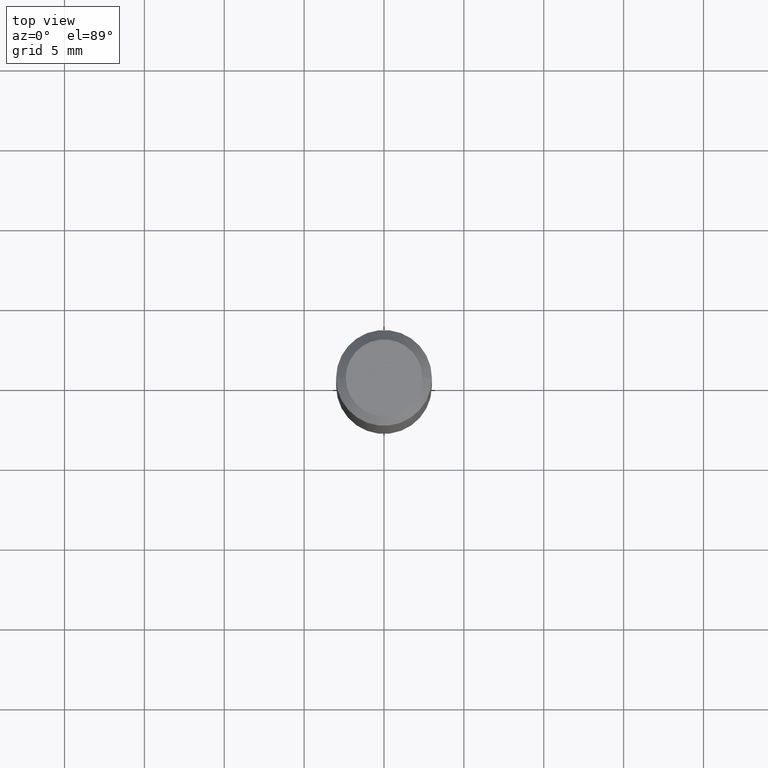
[diagram: clean part render]
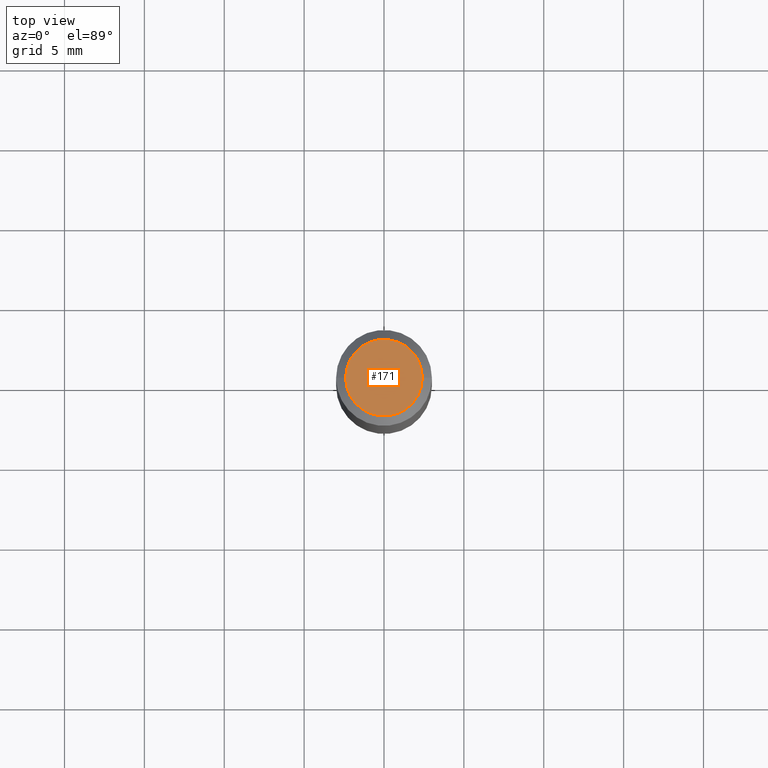
[diagram: same view with one face highlighted and labeled with its STEP entity id]
A machine part, top view. The second image highlights one B-rep face of the part: STEP entity #171.
In plain terms, the highlighted planar face has unit normal (0, -0, -1).
Its self-contained STEP definition (entity closure, byte-faithful):
#1 = VERTEX_POINT ( 'NONE', #514 ) ;
#9 = FACE_OUTER_BOUND ( 'NONE', #294, .T. ) ;
#19 = CIRCLE ( 'NONE', #119, 0.09447999999999998066 ) ;
#119 = AXIS2_PLACEMENT_3D ( 'NONE', #124, #203, #442 ) ;
#120 = DIRECTION ( 'NONE',  ( 1.000000000000000000, -6.982962677686267499E-15, 4.875432709231658792E-29 ) ) ;
#124 = CARTESIAN_POINT ( 'NONE',  ( 7.545787641473140628E-46, -1.077338491108201769E-31, -3.085620075131671975E-17 ) ) ;
#126 = CARTESIAN_POINT ( 'NONE',  ( 3.772893820736570314E-46, -5.386692455541008845E-32, -1.542810037565835988E-17 ) ) ;
#171 = ADVANCED_FACE ( 'NONE', ( #9 ), #486, .F. ) ;
#203 = DIRECTION ( 'NONE',  ( -2.445468806185136597E-29, 3.491481338843145583E-15, 1.000000000000000000 ) ) ;
#206 = DIRECTION ( 'NONE',  ( -1.000000000000000000, 6.982962677686265922E-15, -4.876176775795935793E-29 ) ) ;
#209 = CIRCLE ( 'NONE', #480, 0.09447999999999998066 ) ;
#237 = ORIENTED_EDGE ( 'NONE', *, *, #481, .T. ) ;
#290 = VERTEX_POINT ( 'NONE', #369 ) ;
#294 = EDGE_LOOP ( 'NONE', ( #376, #237 ) ) ;
#321 = AXIS2_PLACEMENT_3D ( 'NONE', #126, #447, #206 ) ;
#356 = DIRECTION ( 'NONE',  ( -2.445468806185136597E-29, 3.491481338843145583E-15, 1.000000000000000000 ) ) ;
#369 = CARTESIAN_POINT ( 'NONE',  ( 0.09447999999999998066, -7.704367267948738690E-16, -3.085620075131172158E-17 ) ) ;
#376 = ORIENTED_EDGE ( 'NONE', *, *, #450, .T. ) ;
#397 = CARTESIAN_POINT ( 'NONE',  ( 7.545787641473140628E-46, -1.077338491108201769E-31, -3.085620075131671975E-17 ) ) ;
#442 = DIRECTION ( 'NONE',  ( 1.000000000000000000, -6.982962677686267499E-15, 4.875432709231658792E-29 ) ) ;
#447 = DIRECTION ( 'NONE',  ( 2.438088387897960049E-29, -3.491481338843145188E-15, -1.000000000000000000 ) ) ;
#450 = EDGE_CURVE ( 'NONE', #1, #290, #19, .T. ) ;
#480 = AXIS2_PLACEMENT_3D ( 'NONE', #397, #356, #120 ) ;
#481 = EDGE_CURVE ( 'NONE', #290, #1, #209, .T. ) ;
#486 = PLANE ( 'NONE',  #321 ) ;
#514 = CARTESIAN_POINT ( 'NONE',  ( -0.09447999999999998066, 7.009847083995354710E-16, -3.085620075132147757E-17 ) ) ;